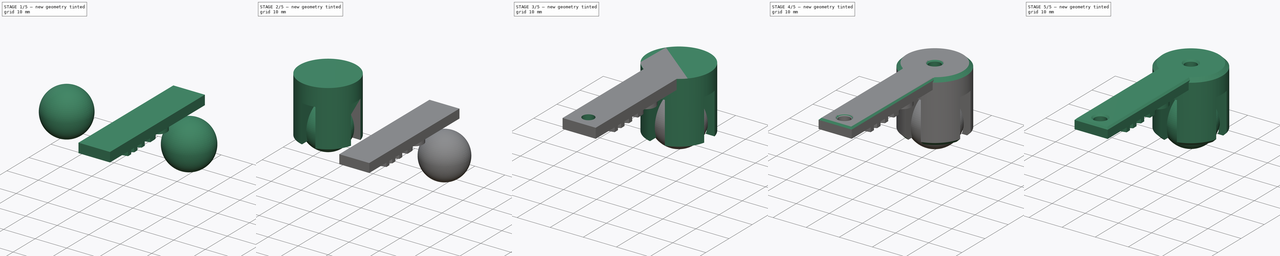
[diagram: build sequence overview — one tinted view per stage of 5, left to right]
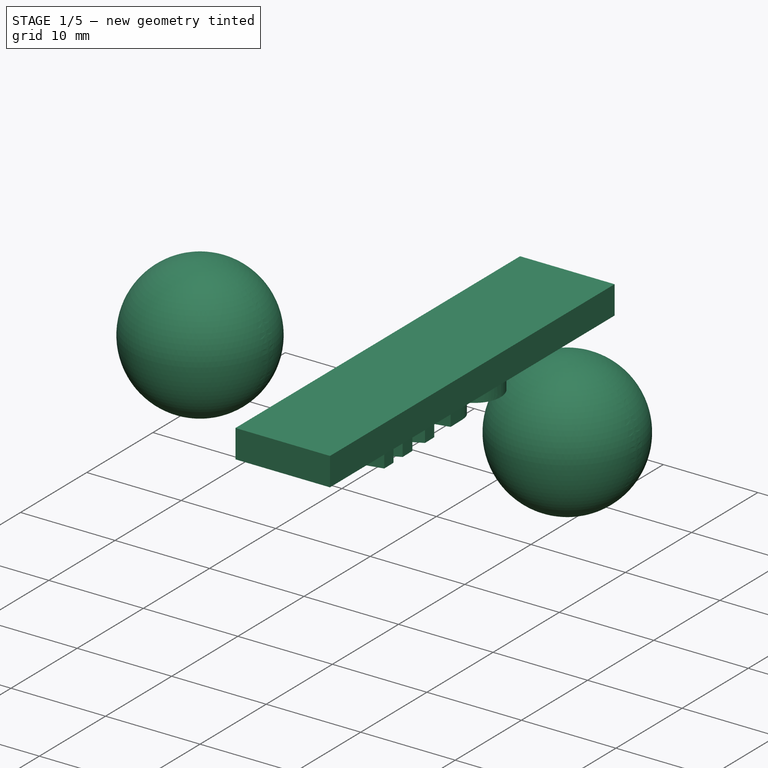
[diagram: stage 1 of 5 — iso view after this stage's code; geometry added in this stage tinted green]
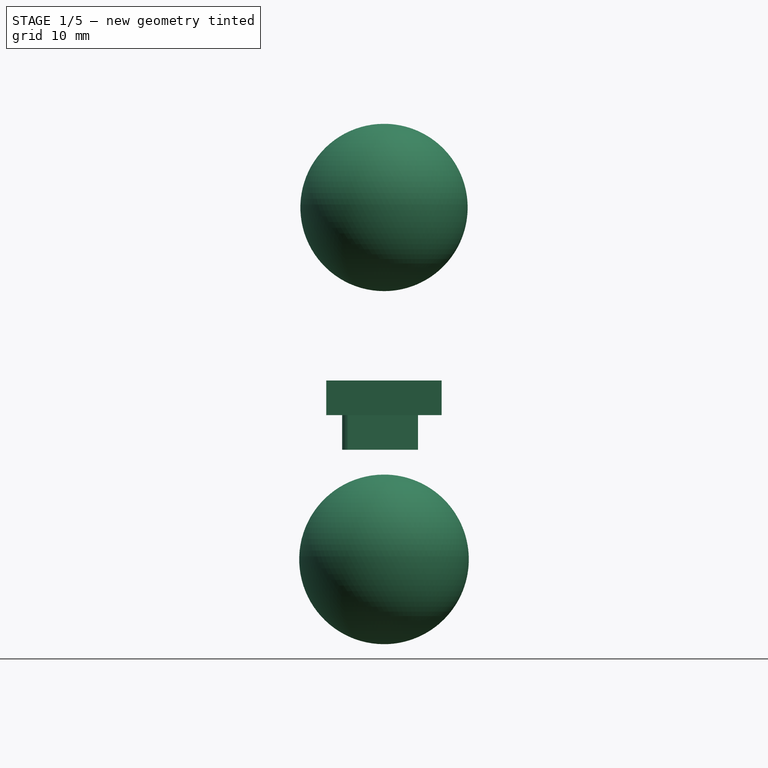
[diagram: stage 1 of 5 — front view after this stage's code; geometry added in this stage tinted green]
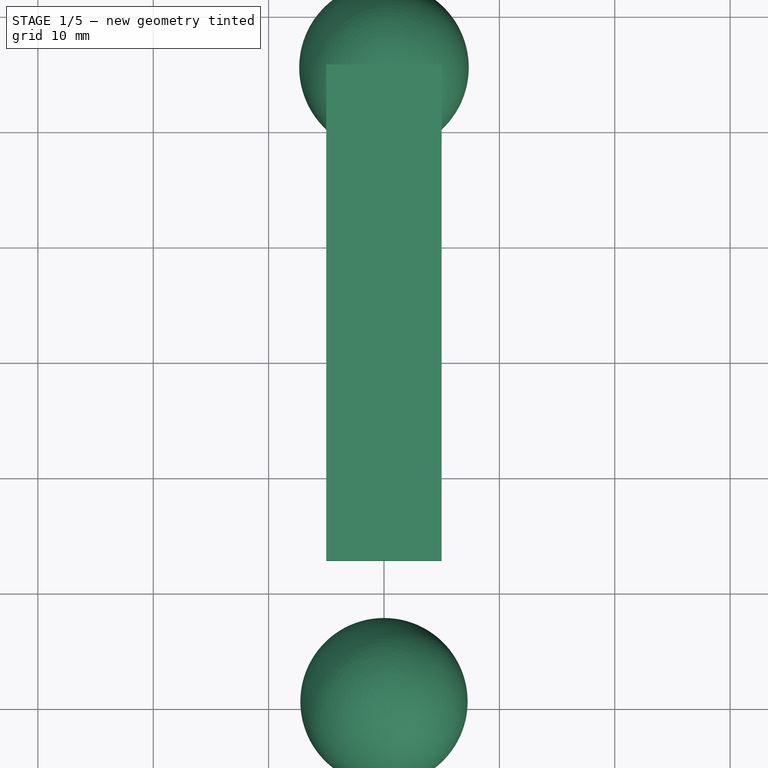
[diagram: stage 1 of 5 — top view after this stage's code; geometry added in this stage tinted green]
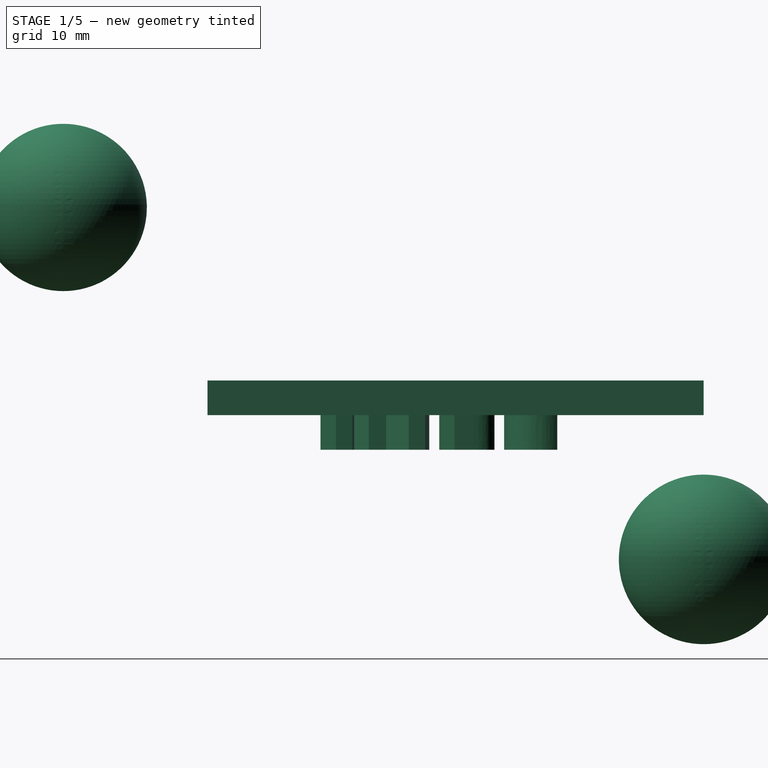
[diagram: stage 1 of 5 — right view after this stage's code; geometry added in this stage tinted green]
FCSTD DOCUMENT  (FreeCAD 0.16R6707 (Git))
Label: mi_bola_loca
License: All rights reserved
LicenseURL: http://en.wikipedia.org/wiki/All_rights_reserved
objects: Sketcher::SketchObject×4, PartDesign::Pocket×4, Part::Chamfer×3, Part::Sphere×2, Part::Cut×2, Part::FeaturePython×2, Part::MultiFuse×2, App::DocumentObjectGroup×2, Part::Cylinder×1, PartDesign::PolarPattern×1, Part::Offset×1, Part::Box×1, Part::Part2DObjectPython×1, Part::Extrusion×1
note: 29 computed .brp shape members not serialized (recipe doc carries the construction recipe); baked Part::Feature solids carry a one-line shape summary decoded from their .brp

FEATURE [Part::Sphere] Sphere  label="BallCasterSphere"
  Angle1 = -90
  Angle2 = 90
  Angle3 = 360
  Radius = 7.25
FEATURE [Part::Box] Box001  label="BallCasterCube001"
  Height = 3
  Length = 10
  Placement = pos=(-5,12.5,-18) rot=(0,0,1;0rad)
  Width = 43
FEATURE [Part::Sphere] Sphere001  label="BallCasterSphere001"
  Angle1 = -90
  Angle2 = 90
  Angle3 = 360
  Placement = pos=(0,55.5,-30.5) rot=(0,0,1;0rad)
  Radius = 7.35
FEATURE [Part::Part2DObjectPython] ShapeString  # Draft 2D object (typed FeaturePython)
  FontFile = <path>
  Placement = pos=(-2.93823,19.1312,-18) rot=(1,0,0;3.14159rad)
  Size = 6.5
  String = MARC
  Tracking = 0
FEATURE [App::DocumentObjectGroup] Construction
  Group = -> [ShapeString]
FEATURE [Part::Extrusion] Extrude
  Base = -> ShapeString
  Dir = (0,0,3)
  Placement = pos=(15.9384,25.7425,-3) rot=(0,0,1;1.58825rad)
  Solid = false
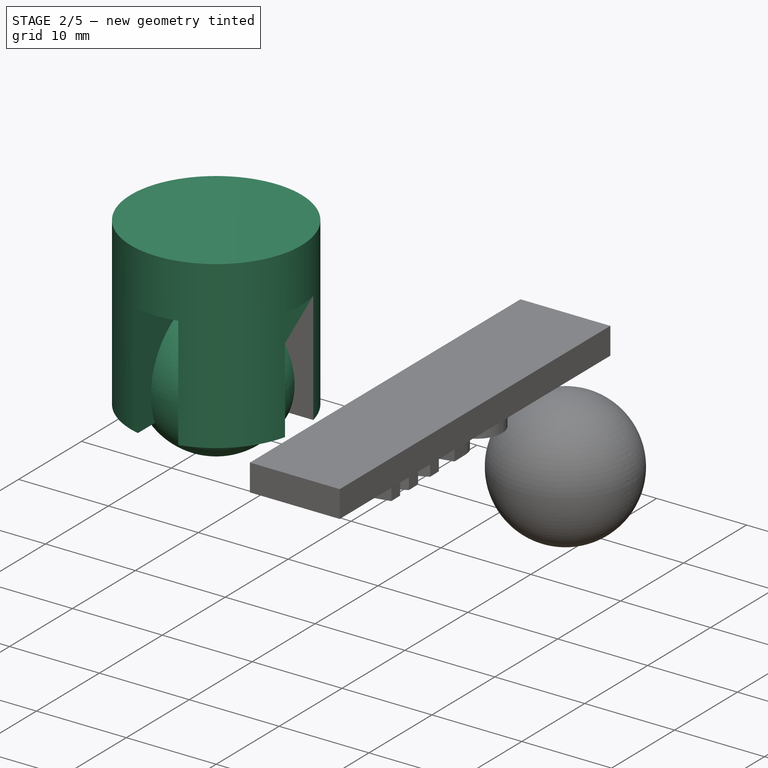
[diagram: stage 2 of 5 — iso view after this stage's code; geometry added in this stage tinted green]
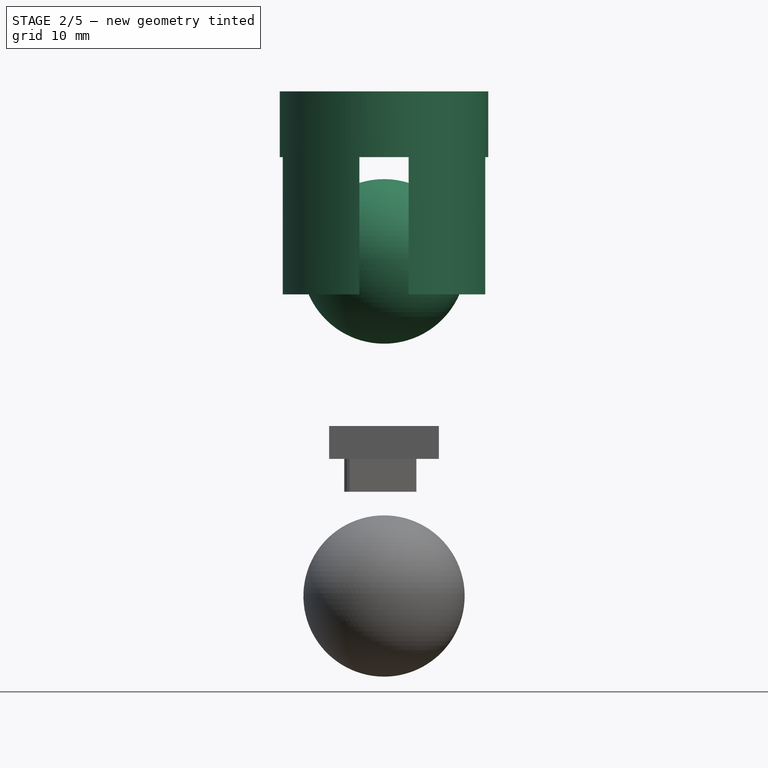
[diagram: stage 2 of 5 — front view after this stage's code; geometry added in this stage tinted green]
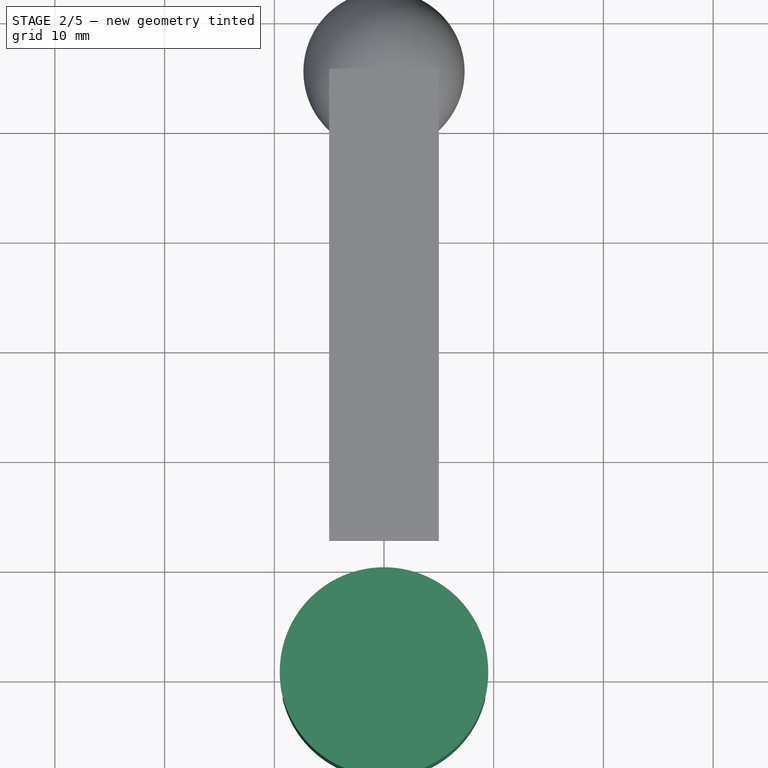
[diagram: stage 2 of 5 — top view after this stage's code; geometry added in this stage tinted green]
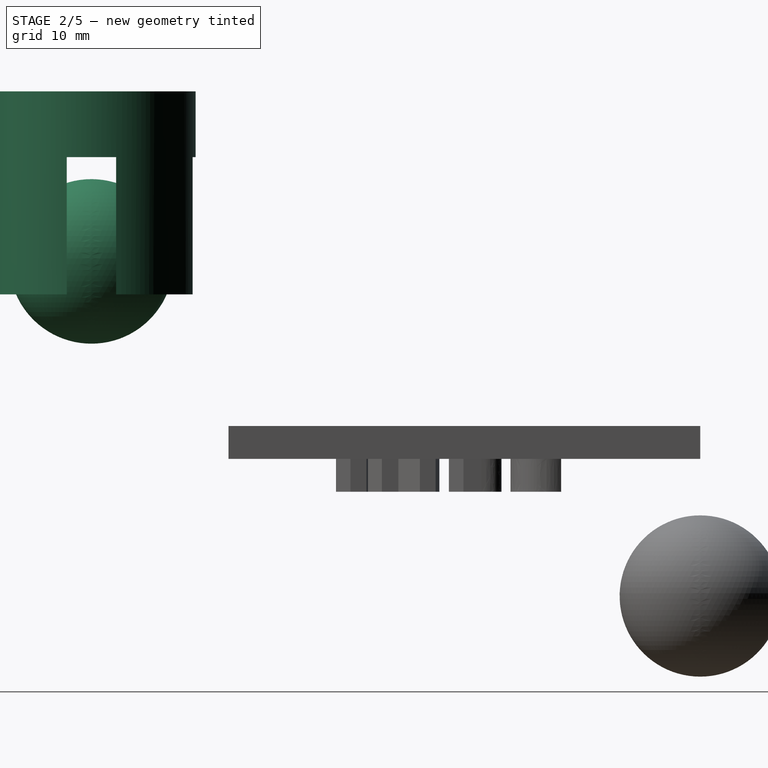
[diagram: stage 2 of 5 — right view after this stage's code; geometry added in this stage tinted green]
FEATURE [Part::Cylinder] Cylinder  label="BallCasterCylinder"
  Angle = 360
  Height = 18.5
  Placement = pos=(0,0,-3) rot=(0,0,1;0rad)
  Radius = 9.5
FEATURE [Sketcher::SketchObject] Sketch014  label="BallCasterGrooveSketch014"
  Placement = pos=(0,0,-3) rot=(1,0,0;3.14159rad)
  Support = -> Cylinder [Face3]
  sketch-geometry (4):
    g0: LineSegment StartX=-2.25 StartY=10 StartZ=0 EndX=2.25 EndY=10 EndZ=0
    g1: LineSegment StartX=2.25 StartY=10 StartZ=0 EndX=2.25 EndY=-10 EndZ=0
    g2: LineSegment StartX=2.25 StartY=-10 StartZ=0 EndX=-2.25 EndY=-10 EndZ=0
    g3: LineSegment StartX=-2.25 StartY=-10 StartZ=0 EndX=-2.25 EndY=10 EndZ=0
  constraints (11):
    c: Coincident(g0,g1)
    c: Coincident(g1,g2)
    c: Coincident(g2,g3)
    c: Coincident(g3,g0)
    c: Horizontal(g0)
    c: Horizontal(g2)
    c: Vertical(g1)
    c: Vertical(g3)
    c: DistanceX(g2) = -4.5
    c: DistanceY(g3) = 20
    c: Symmetric(g0,g1,g-1)
FEATURE [PartDesign::Pocket] Pocket010  label="BallCasterGroovePocket010"
  Length = 12.5
  Placement = pos=(0,0,-3) rot=(0,0,1;0rad)
  Sketch = -> Sketch014
  Type = 0
FEATURE [PartDesign::PolarPattern] PolarPattern  label="BallCasterGroovePolarPattern"
  Angle = 90
  Axis = -> Sketch014 [N_Axis]
  Occurrences = 2
  Originals = -> [Pocket010]
  Placement = pos=(0,0,-3) rot=(0,0,1;0rad)
FEATURE [Part::Offset] Offset  label="BallCasterSphereOffset"
  Fill = false
  Intersection = false
  Join = 0
  Mode = 0
  SelfIntersection = false
  Source = -> Sphere
  Value = 0.25
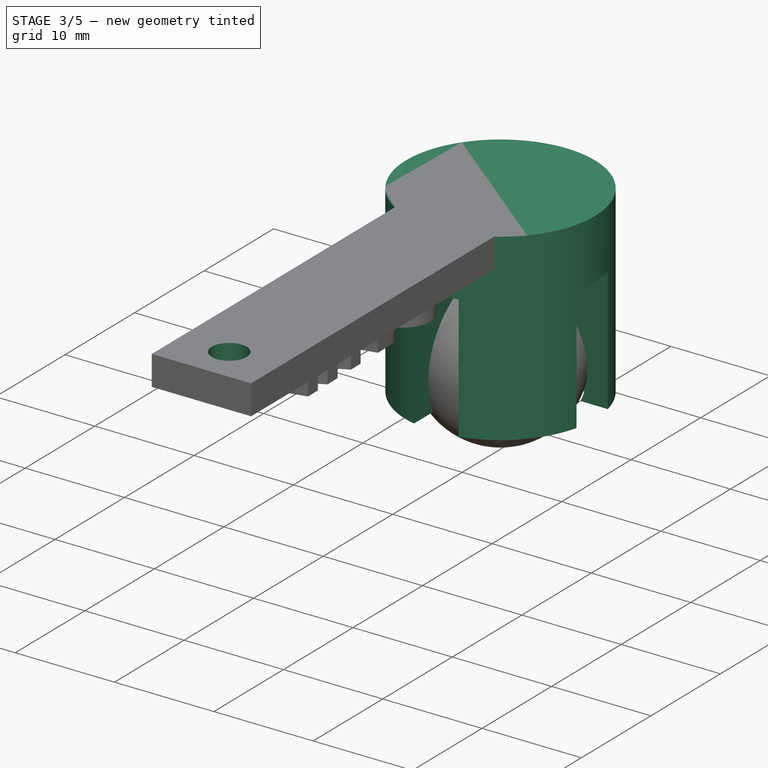
[diagram: stage 3 of 5 — iso view after this stage's code; geometry added in this stage tinted green]
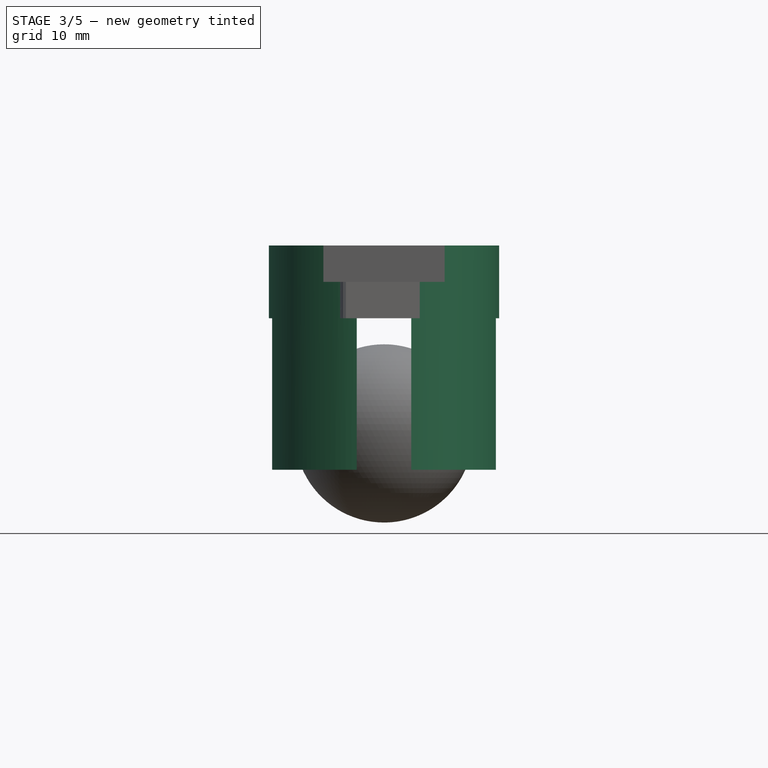
[diagram: stage 3 of 5 — front view after this stage's code; geometry added in this stage tinted green]
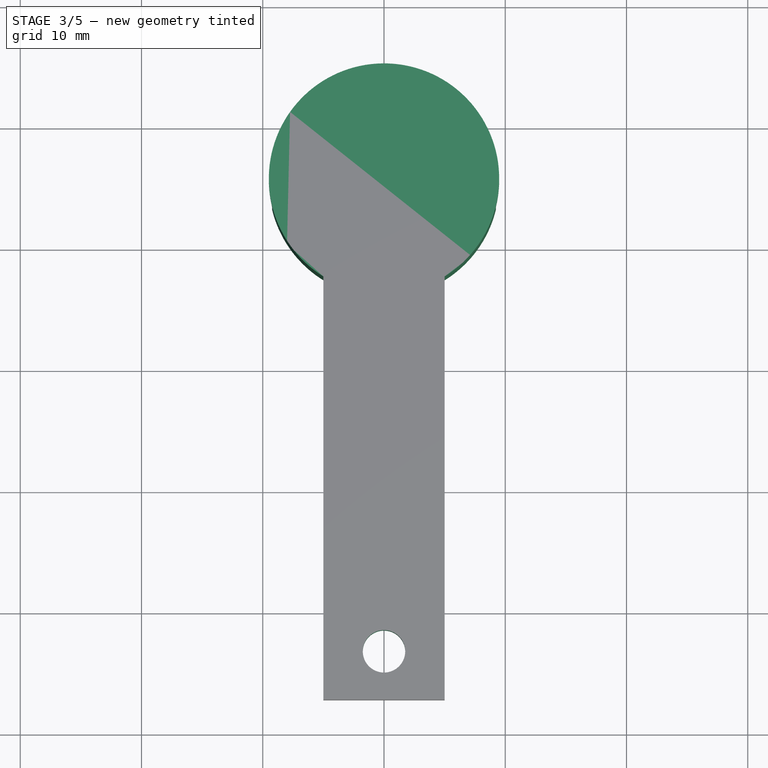
[diagram: stage 3 of 5 — top view after this stage's code; geometry added in this stage tinted green]
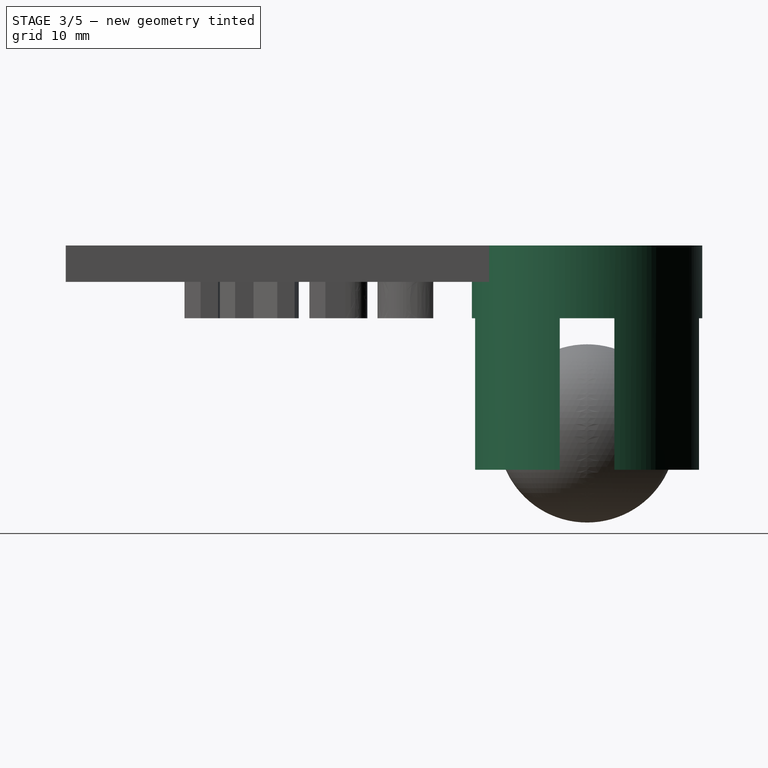
[diagram: stage 3 of 5 — right view after this stage's code; geometry added in this stage tinted green]
FEATURE [Part::Cut] Cut  label="BallCasterCut"
  Base = -> PolarPattern
  Tool = -> Offset
FEATURE [Part::FeaturePython] Clone  label="Clone of BallCasterCut"  # Draft clone (typed FeaturePython)
  Objects = -> [Cut]
  Placement = pos=(0,55.5,-30.5) rot=(0,0,1;0rad)
  Scale = (1,1,1)
FEATURE [Part::MultiFuse] Fusion002  label="BallCasterFusion002"
  Shapes = -> [Box001,Clone]
FEATURE [Sketcher::SketchObject] Sketch021  label="BallCasterScrewHoleSketch021"
  Placement = pos=(0,0,-18) rot=(1,0,0;3.14159rad)
  Support = -> Fusion002 [Face2]
  sketch-geometry (1):
    g0: Circle CenterX=0 CenterY=-16.5 CenterZ=0 NormalX=0 NormalY=0 NormalZ=1 Radius=1.75
  constraints (3):
    c: PointOnObject(g0,g-2)
    c: Radius(g0) = 1.75
    c: DistanceY(g-1,g0) = -16.5
FEATURE [PartDesign::Pocket] Pocket018  label="BallCasterScrewHolePocket018"
  Length = 5
  Sketch = -> Sketch021
  Type = 0
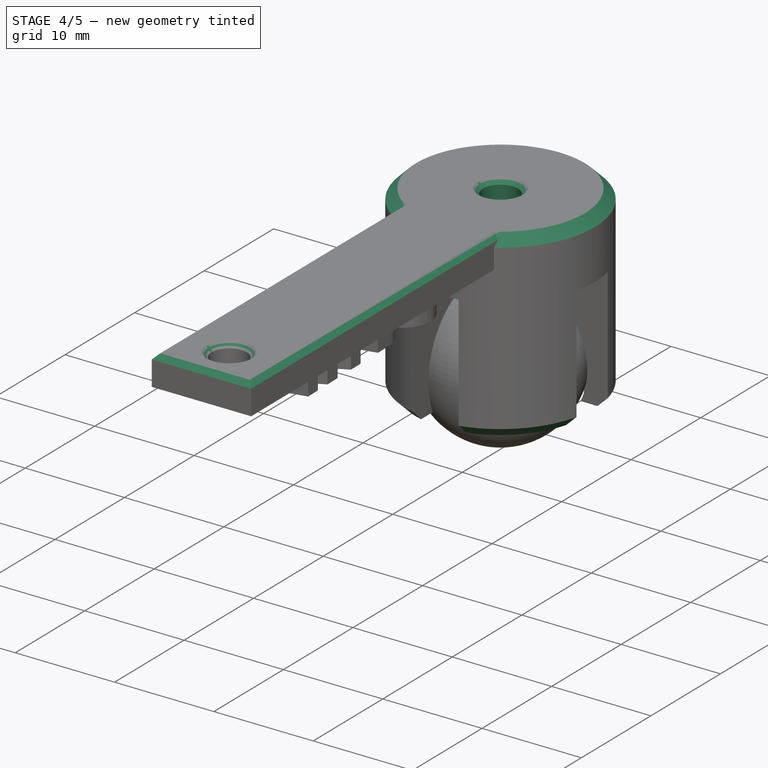
[diagram: stage 4 of 5 — iso view after this stage's code; geometry added in this stage tinted green]
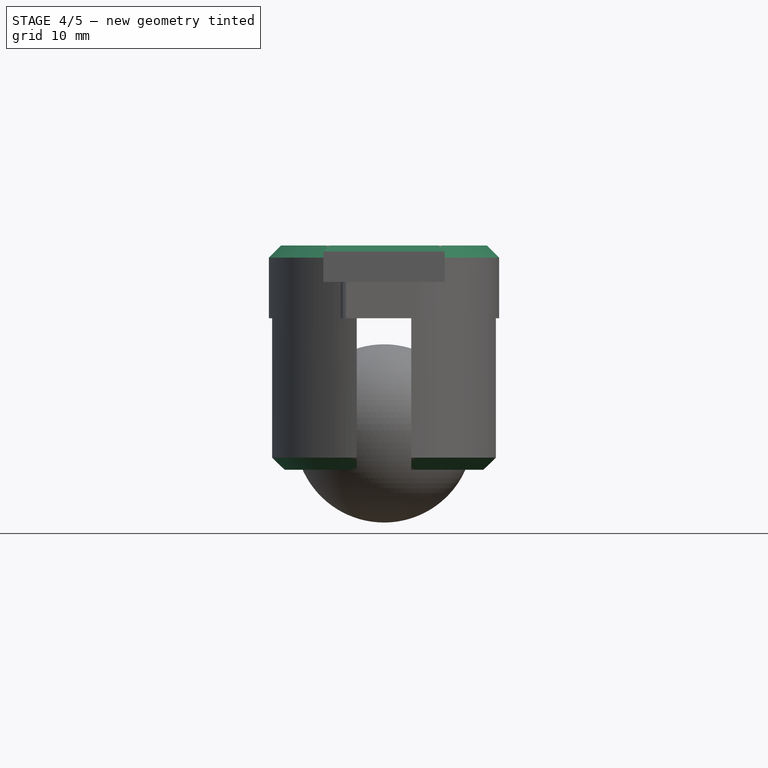
[diagram: stage 4 of 5 — front view after this stage's code; geometry added in this stage tinted green]
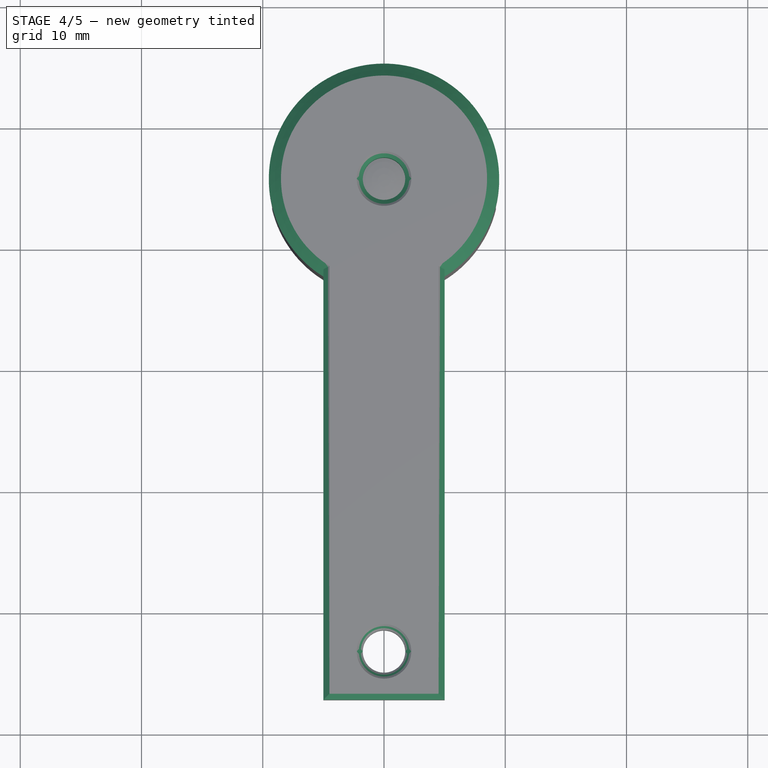
[diagram: stage 4 of 5 — top view after this stage's code; geometry added in this stage tinted green]
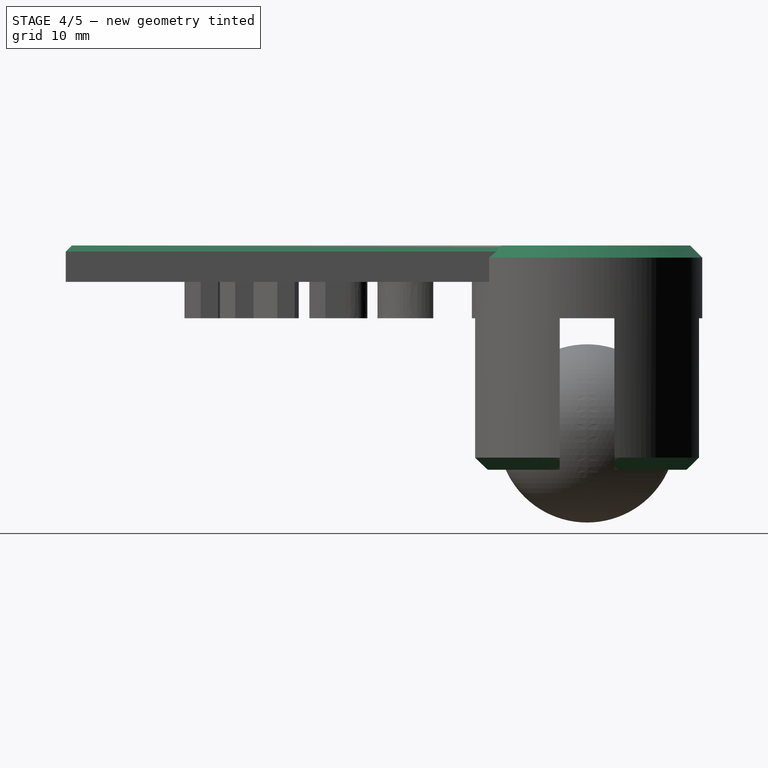
[diagram: stage 4 of 5 — right view after this stage's code; geometry added in this stage tinted green]
FEATURE [Sketcher::SketchObject] Sketch026  label="BallCasterScrewHeadSketch026"
  Placement = pos=(0,0,-33.5) rot=(1,0,0;3.14159rad)
  Support = -> Pocket018 [Face19]
  sketch-geometry (1):
    g0: Circle CenterX=0 CenterY=-55.5 CenterZ=0 NormalX=0 NormalY=0 NormalZ=1 Radius=3
  constraints (3):
    c: PointOnObject(g0,g-2)
    c: Radius(g0) = 3
    c: DistanceY(g-1,g0) = -55.5
FEATURE [PartDesign::Pocket] Pocket019  label="BallCasterScrewHeadPocket019"
  Length = 15.5
  Sketch = -> Sketch026
  Type = 0
FEATURE [Sketcher::SketchObject] Sketch027  label="BallCasterScrewHoleSketch027"
  Placement = pos=(0,0,-18) rot=(1,0,0;3.14159rad)
  Support = -> Pocket019 [Face2]
  sketch-geometry (1):
    g0: Circle CenterX=0 CenterY=-55.5 CenterZ=0 NormalX=0 NormalY=0 NormalZ=1 Radius=1.75
  constraints (3):
    c: PointOnObject(g0,g-2)
    c: DistanceY(g-1,g0) = -55.5
    c: Radius(g0) = 1.75
FEATURE [PartDesign::Pocket] Pocket020  label="BallCasterScrewHolePocket020"
  Length = 5
  Sketch = -> Sketch027
  Type = 0
FEATURE [Part::Chamfer] Chamfer013  label="BallCasterChamfer013"
  Base = -> Pocket020
  Edges = 4 edges r=1: [Edge22,Edge26,Edge30,Edge34]
FEATURE [App::DocumentObjectGroup] Group002  label="BallCasterGroup"
  Group = -> [Box001,Clone001,Cut,Pocket010,Cylinder,Fusion002,Pocket018,Pocket019,Chamfer016]
FEATURE [Part::Chamfer] Chamfer017  label="BallCasterPrintingChamfer022-Final001"
  Base = -> Chamfer013
  Edges = 7 edges: [Edge7 r=1,Edge15 r=1,Edge43 r=0.5,Edge45 r=0.5,Edge46 r=0.5,Edge47 r=0.5,Edge48 r=0.5]
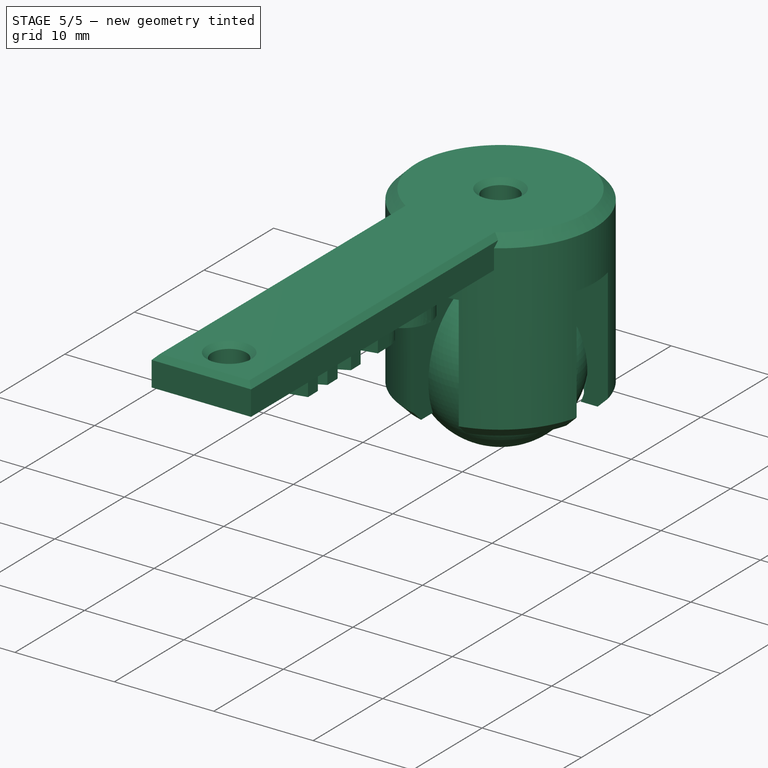
[diagram: stage 5 of 5 — iso view after this stage's code; geometry added in this stage tinted green]
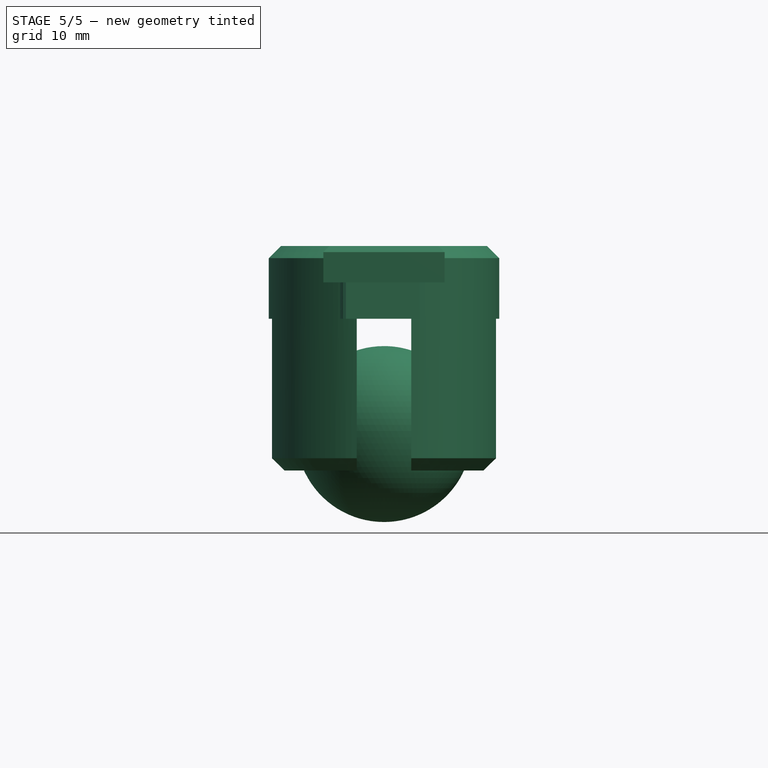
[diagram: stage 5 of 5 — front view after this stage's code; geometry added in this stage tinted green]
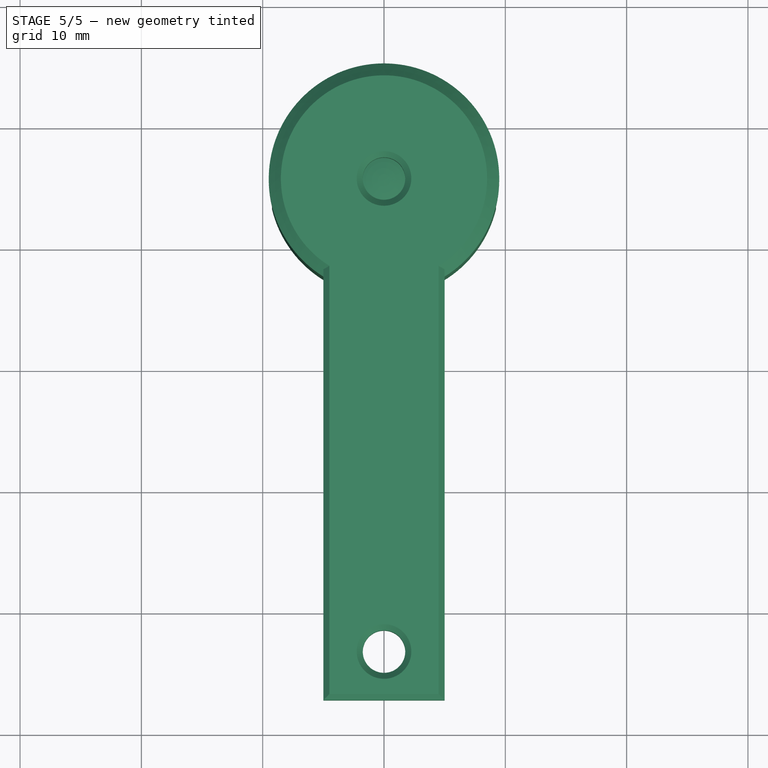
[diagram: stage 5 of 5 — top view after this stage's code; geometry added in this stage tinted green]
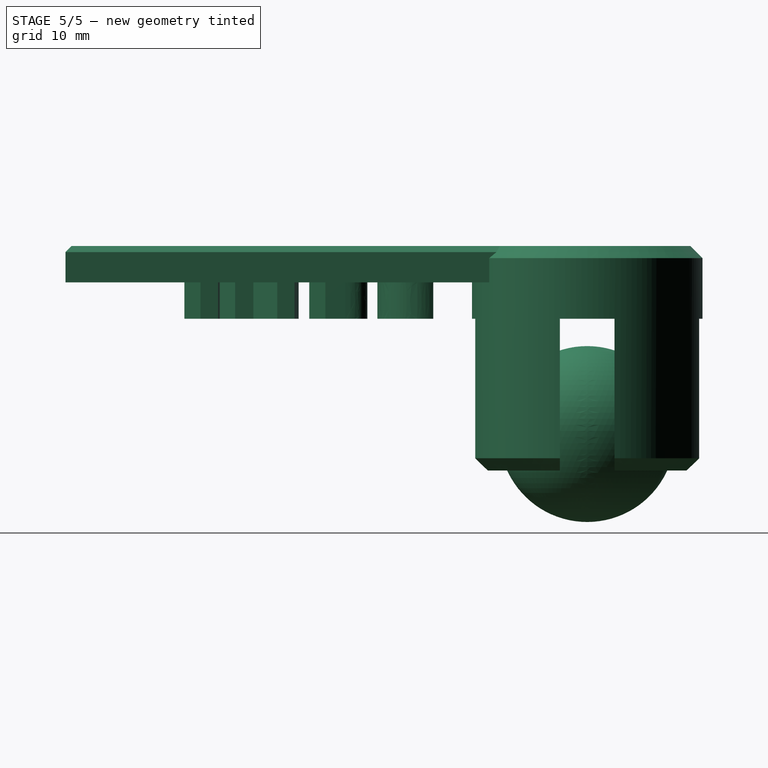
[diagram: stage 5 of 5 — right view after this stage's code; geometry added in this stage tinted green]
FEATURE [Part::FeaturePython] Clone001  label="Clone of BallCasterSphere"  # Draft clone (typed FeaturePython)
  Objects = -> [Sphere]
  Placement = pos=(0,55.5,-30.5) rot=(0,0,1;0rad)
  Scale = (1,1,1)
FEATURE [Part::Chamfer] Chamfer016  label="BallCasterPrintingChamfer022-Final"
  Base = -> Chamfer013
  Edges = 7 edges: [Edge7 r=1,Edge15 r=1,Edge43 r=0.5,Edge45 r=0.5,Edge46 r=0.5,Edge47 r=0.5,Edge48 r=0.5]
FEATURE [Part::Cut] Cut001  label="Mi_bola_loca_parametrica"
  Base = -> Chamfer017
  Tool = -> Sphere001
FEATURE [Part::MultiFuse] Fusion
  Shapes = -> [Cut001,Extrude]
note: 1 file-system path scrubbed to <path> (originals preserved in the JSON sidecar)
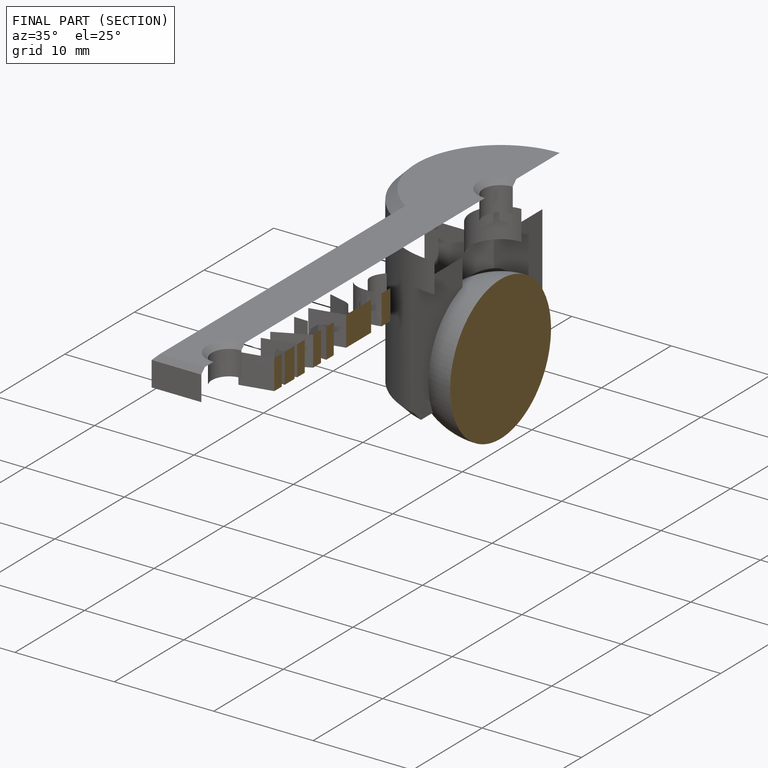
[diagram: finished part — half-section view (interior)]
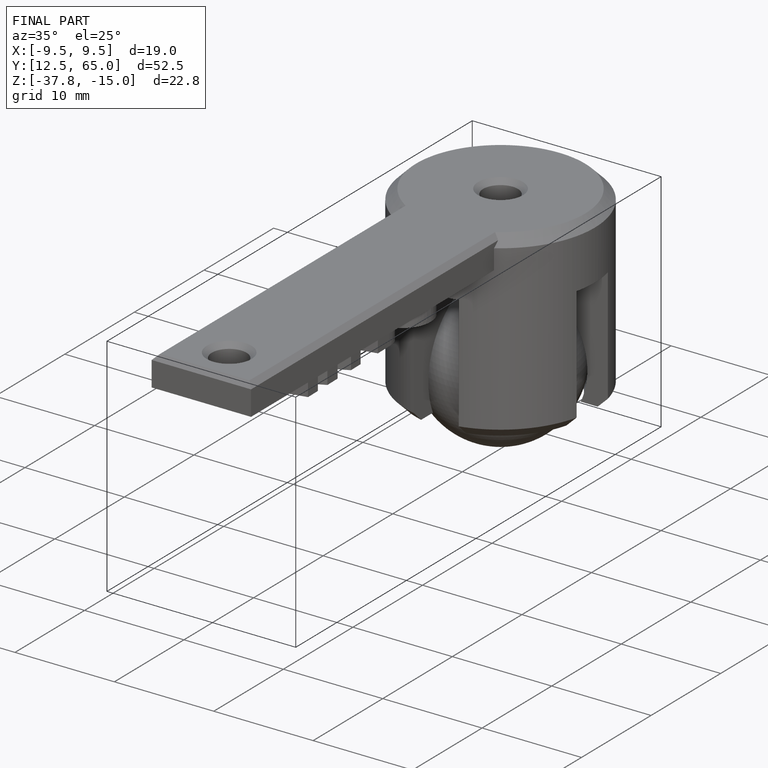
[diagram: finished part — iso view with bounding-box wireframe]
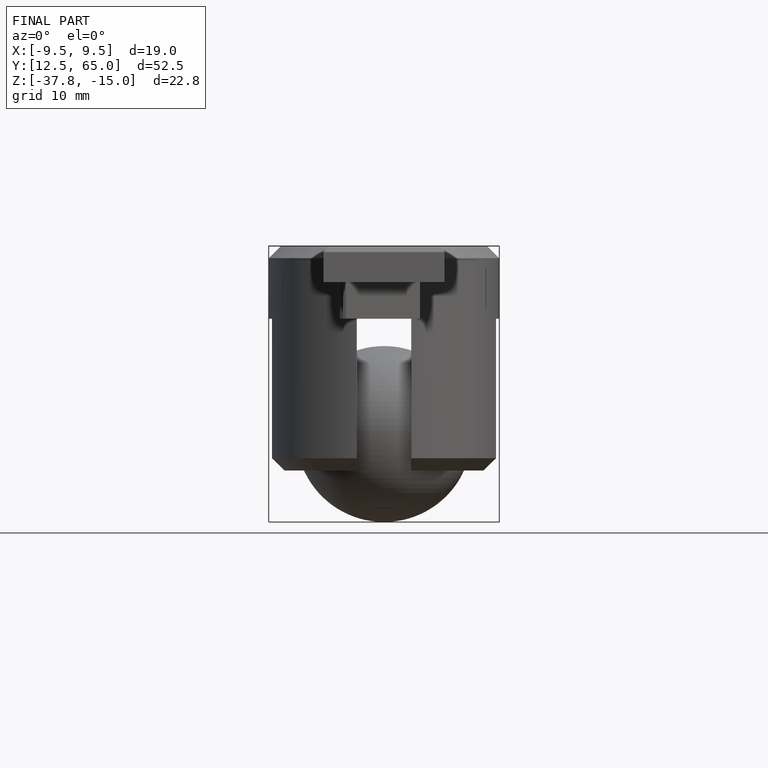
[diagram: finished part — front view with bounding-box wireframe]
